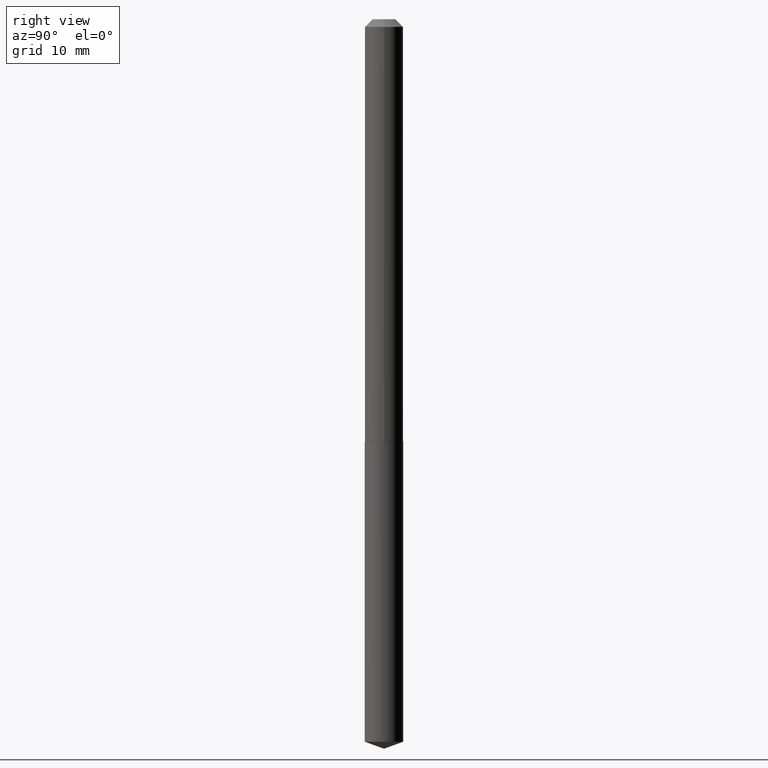
[diagram: clean part render]
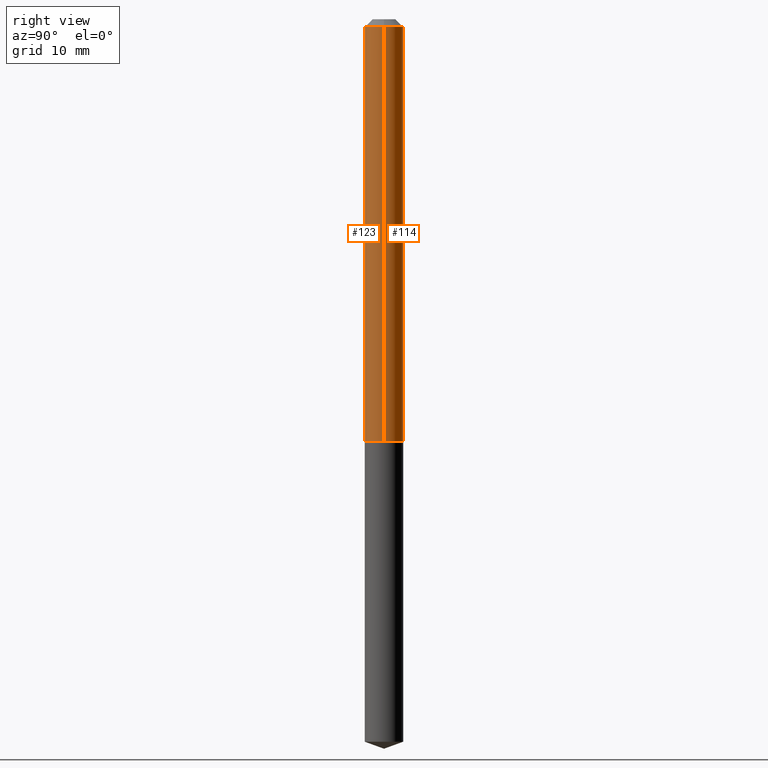
[diagram: same view with one multi-face feature highlighted, each face labeled with its STEP entity id]
A machine part, right view. The highlighted faces form ONE feature: a constant-radius fillet chain: 2 tangent blend faces with common blend radius 2.0003 mm. The faces share edges in the B-rep.
Their STEP definitions:
[1] entity #114 (Cylinder):
#1 = CARTESIAN_POINT ( 'NONE',  ( 0.000000000000000000, 0.000000000000000000, 0.000000000000000000 ) ) ;
#14 = EDGE_CURVE ( 'NONE', #192, #153, #122, .T. ) ;
#21 = CYLINDRICAL_SURFACE ( 'NONE', #25, 0.07875000000000011158 ) ;
#25 = AXIS2_PLACEMENT_3D ( 'NONE', #1, #365, #217 ) ;
#27 = CIRCLE ( 'NONE', #368, 0.07875000000000022260 ) ;
#53 = EDGE_LOOP ( 'NONE', ( #389, #209, #333, #273 ) ) ;
#71 = FACE_OUTER_BOUND ( 'NONE', #53, .T. ) ;
#78 = CIRCLE ( 'NONE', #305, 0.07875000000000000056 ) ;
#85 = DIRECTION ( 'NONE',  ( 1.000000000000000000, -6.982962677686265922E-15, 0.000000000000000000 ) ) ;
#89 = CARTESIAN_POINT ( 'NONE',  ( -0.07875000000000000056, -2.518275682812623564E-15, -0.03125000000000020123 ) ) ;
#90 = VECTOR ( 'NONE', #162, 39.37007874015748143 ) ;
#98 = VERTEX_POINT ( 'NONE', #325 ) ;
#114 = ADVANCED_FACE ( 'NONE', ( #71 ), #21, .T. ) ;
#122 = LINE ( 'NONE', #221, #258 ) ;
#153 = VERTEX_POINT ( 'NONE', #89 ) ;
#157 = DIRECTION ( 'NONE',  ( -2.445468806185136597E-29, 3.491481338843145583E-15, 1.000000000000000000 ) ) ;
#162 = DIRECTION ( 'NONE',  ( -2.445468806185136877E-29, 3.491481338843145188E-15, 1.000000000000000000 ) ) ;
#178 = EDGE_CURVE ( 'NONE', #98, #153, #78, .T. ) ;
#192 = VERTEX_POINT ( 'NONE', #342 ) ;
#199 = LINE ( 'NONE', #253, #90 ) ;
#209 = ORIENTED_EDGE ( 'NONE', *, *, #14, .T. ) ;
#217 = DIRECTION ( 'NONE',  ( 1.000000000000000000, -6.982962677686267499E-15, 4.876176775795936353E-29 ) ) ;
#221 = CARTESIAN_POINT ( 'NONE',  ( -0.07875000000000011158, 5.595524044110796892E-16, -3.873661383575744098E-30 ) ) ;
#238 = EDGE_CURVE ( 'NONE', #362, #98, #199, .T. ) ;
#242 = DIRECTION ( 'NONE',  ( -2.445468806185136597E-29, 3.491481338843145583E-15, 1.000000000000000000 ) ) ;
#251 = DIRECTION ( 'NONE',  ( -2.445468806185136877E-29, 3.491481338843145188E-15, 1.000000000000000000 ) ) ;
#253 = CARTESIAN_POINT ( 'NONE',  ( 0.07875000000000011158, -5.499083108677943318E-16, 3.839989210939305322E-30 ) ) ;
#258 = VECTOR ( 'NONE', #251, 39.37007874015748143 ) ;
#269 = DIRECTION ( 'NONE',  ( 1.000000000000000000, -6.982962677686264344E-15, 0.000000000000000000 ) ) ;
#273 = ORIENTED_EDGE ( 'NONE', *, *, #238, .F. ) ;
#294 = CARTESIAN_POINT ( 'NONE',  ( 7.642090019328601786E-31, -1.091087918388490144E-16, -0.03125000000000020123 ) ) ;
#305 = AXIS2_PLACEMENT_3D ( 'NONE', #294, #157, #269 ) ;
#306 = CARTESIAN_POINT ( 'NONE',  ( 4.235062878551419591E-29, -6.046547382608559574E-15, -1.731800000000000006 ) ) ;
#325 = CARTESIAN_POINT ( 'NONE',  ( 0.07875000000000000056, -6.590171027066424463E-16, -0.03125000000000020123 ) ) ;
#327 = CARTESIAN_POINT ( 'NONE',  ( 0.07875000000000022260, -6.596455693476355287E-15, -1.731800000000000006 ) ) ;
#333 = ORIENTED_EDGE ( 'NONE', *, *, #178, .F. ) ;
#342 = CARTESIAN_POINT ( 'NONE',  ( -0.07875000000000022260, -5.486994978197479195E-15, -1.731800000000000006 ) ) ;
#362 = VERTEX_POINT ( 'NONE', #327 ) ;
#365 = DIRECTION ( 'NONE',  ( -2.445468806185136597E-29, 3.491481338843145583E-15, 1.000000000000000000 ) ) ;
#368 = AXIS2_PLACEMENT_3D ( 'NONE', #306, #242, #85 ) ;
#386 = EDGE_CURVE ( 'NONE', #362, #192, #27, .T. ) ;
#389 = ORIENTED_EDGE ( 'NONE', *, *, #386, .T. ) ;
[2] entity #123 (Cylinder):
#3 = CIRCLE ( 'NONE', #201, 0.07875000000000022260 ) ;
#14 = EDGE_CURVE ( 'NONE', #192, #153, #122, .T. ) ;
#16 = DIRECTION ( 'NONE',  ( -2.445468806185136597E-29, 3.491481338843145583E-15, 1.000000000000000000 ) ) ;
#89 = CARTESIAN_POINT ( 'NONE',  ( -0.07875000000000000056, -2.518275682812623564E-15, -0.03125000000000020123 ) ) ;
#90 = VECTOR ( 'NONE', #162, 39.37007874015748143 ) ;
#95 = DIRECTION ( 'NONE',  ( 1.000000000000000000, -6.982962677686265922E-15, 0.000000000000000000 ) ) ;
#98 = VERTEX_POINT ( 'NONE', #325 ) ;
#110 = CIRCLE ( 'NONE', #214, 0.07875000000000000056 ) ;
#116 = ORIENTED_EDGE ( 'NONE', *, *, #238, .T. ) ;
#120 = EDGE_CURVE ( 'NONE', #192, #362, #3, .T. ) ;
#122 = LINE ( 'NONE', #221, #258 ) ;
#123 = ADVANCED_FACE ( 'NONE', ( #138 ), #219, .T. ) ;
#133 = DIRECTION ( 'NONE',  ( -2.445468806185136597E-29, 3.491481338843145583E-15, 1.000000000000000000 ) ) ;
#138 = FACE_OUTER_BOUND ( 'NONE', #245, .T. ) ;
#153 = VERTEX_POINT ( 'NONE', #89 ) ;
#162 = DIRECTION ( 'NONE',  ( -2.445468806185136877E-29, 3.491481338843145188E-15, 1.000000000000000000 ) ) ;
#171 = DIRECTION ( 'NONE',  ( 1.000000000000000000, -6.982962677686267499E-15, 4.876176775795936353E-29 ) ) ;
#188 = CARTESIAN_POINT ( 'NONE',  ( 4.235062878551419591E-29, -6.046547382608559574E-15, -1.731800000000000006 ) ) ;
#189 = ORIENTED_EDGE ( 'NONE', *, *, #120, .T. ) ;
#192 = VERTEX_POINT ( 'NONE', #342 ) ;
#199 = LINE ( 'NONE', #253, #90 ) ;
#201 = AXIS2_PLACEMENT_3D ( 'NONE', #188, #286, #95 ) ;
#214 = AXIS2_PLACEMENT_3D ( 'NONE', #228, #16, #349 ) ;
#216 = CARTESIAN_POINT ( 'NONE',  ( 0.000000000000000000, 0.000000000000000000, 0.000000000000000000 ) ) ;
#219 = CYLINDRICAL_SURFACE ( 'NONE', #225, 0.07875000000000011158 ) ;
#221 = CARTESIAN_POINT ( 'NONE',  ( -0.07875000000000011158, 5.595524044110796892E-16, -3.873661383575744098E-30 ) ) ;
#225 = AXIS2_PLACEMENT_3D ( 'NONE', #216, #133, #171 ) ;
#228 = CARTESIAN_POINT ( 'NONE',  ( 7.642090019328601786E-31, -1.091087918388490144E-16, -0.03125000000000020123 ) ) ;
#231 = EDGE_CURVE ( 'NONE', #153, #98, #110, .T. ) ;
#238 = EDGE_CURVE ( 'NONE', #362, #98, #199, .T. ) ;
#241 = ORIENTED_EDGE ( 'NONE', *, *, #231, .F. ) ;
#245 = EDGE_LOOP ( 'NONE', ( #390, #189, #116, #241 ) ) ;
#251 = DIRECTION ( 'NONE',  ( -2.445468806185136877E-29, 3.491481338843145188E-15, 1.000000000000000000 ) ) ;
#253 = CARTESIAN_POINT ( 'NONE',  ( 0.07875000000000011158, -5.499083108677943318E-16, 3.839989210939305322E-30 ) ) ;
#258 = VECTOR ( 'NONE', #251, 39.37007874015748143 ) ;
#286 = DIRECTION ( 'NONE',  ( -2.445468806185136597E-29, 3.491481338843145583E-15, 1.000000000000000000 ) ) ;
#325 = CARTESIAN_POINT ( 'NONE',  ( 0.07875000000000000056, -6.590171027066424463E-16, -0.03125000000000020123 ) ) ;
#327 = CARTESIAN_POINT ( 'NONE',  ( 0.07875000000000022260, -6.596455693476355287E-15, -1.731800000000000006 ) ) ;
#342 = CARTESIAN_POINT ( 'NONE',  ( -0.07875000000000022260, -5.486994978197479195E-15, -1.731800000000000006 ) ) ;
#349 = DIRECTION ( 'NONE',  ( 1.000000000000000000, -6.982962677686264344E-15, 0.000000000000000000 ) ) ;
#362 = VERTEX_POINT ( 'NONE', #327 ) ;
#390 = ORIENTED_EDGE ( 'NONE', *, *, #14, .F. ) ;